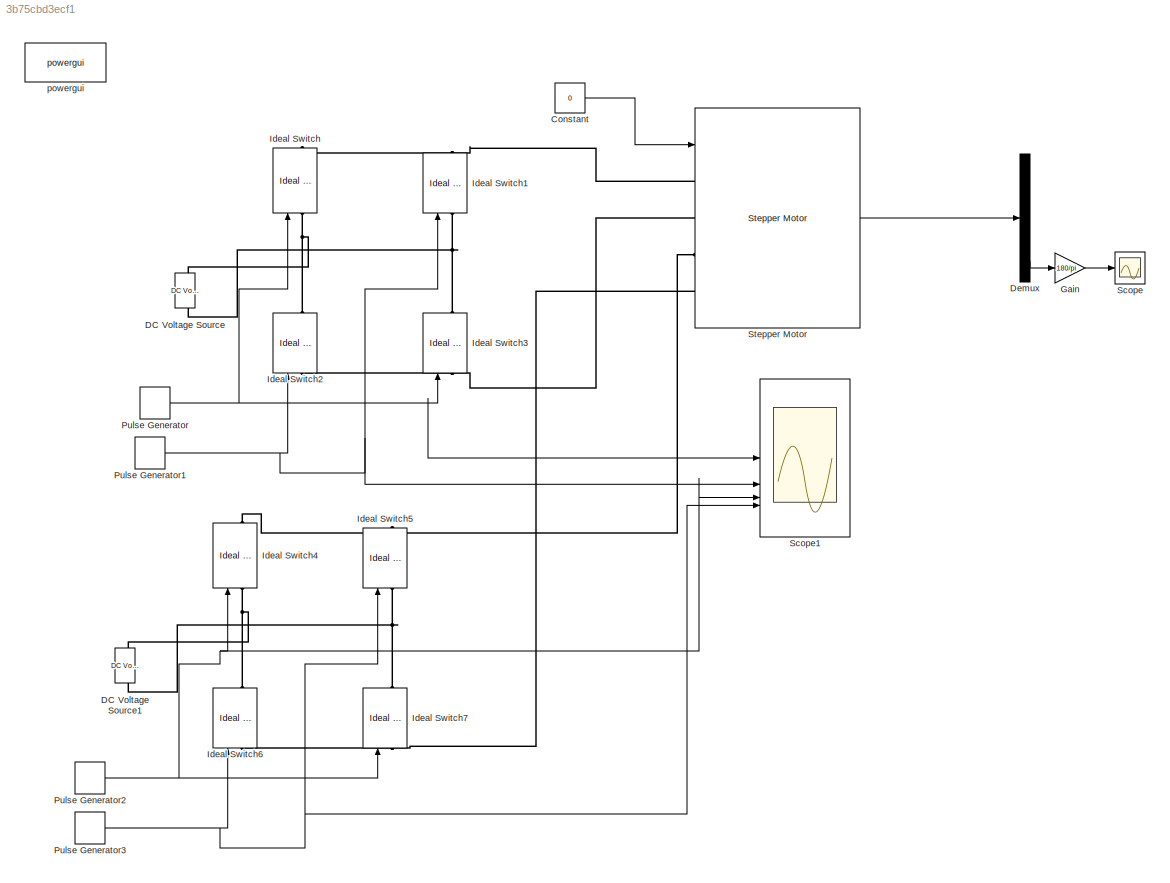
MODEL slx_3b75cbd3ecf1
KIND model
CONFIG AbsTol = auto
CONFIG EnableMultiTasking = off
CONFIG FixedStep = auto
CONFIG MaxStep = auto
CONFIG MinStep = auto
CONFIG RelTol = 1e-3
CONFIG SampleTimeConstraint = Unconstrained
CONFIG SolverName = VariableStepAuto
CONFIG StartTime = 0.0
CONFIG StopTime = 10.0
BLOCK [Constant] Constant
  Value = 0
BLOCK [Reference] DC Voltage Source  REF=spsDCVoltageSourceLib/DC Voltage Source
  LibrarySourceBlock = sps_lib/Sources/DC Voltage Source
  SourceBlock = spsDCVoltageSourceLib/DC Voltage Source
  SourceType = DC Voltage Source
BLOCK [Reference] DC Voltage Source1  REF=spsDCVoltageSourceLib/DC Voltage Source
  LibrarySourceBlock = sps_lib/Sources/DC Voltage Source
  SourceBlock = spsDCVoltageSourceLib/DC Voltage Source
  SourceType = DC Voltage Source
BLOCK [Demux] Demux
  Outputs = 5
BLOCK [Gain] Gain
  Gain = 180/pi
BLOCK [Reference] Ideal Switch  REF=spsIdealSwitchLib/Ideal Switch
  LibrarySourceBlock = sps_lib/Power Electronics/Ideal Switch
  NameLocation = right
  SourceBlock = spsIdealSwitchLib/Ideal Switch
  SourceType = Ideal Switch
BLOCK [Reference] Ideal Switch1  REF=spsIdealSwitchLib/Ideal Switch
  LibrarySourceBlock = sps_lib/Power Electronics/Ideal Switch
  NameLocation = right
  SourceBlock = spsIdealSwitchLib/Ideal Switch
  SourceType = Ideal Switch
BLOCK [Reference] Ideal Switch2  REF=spsIdealSwitchLib/Ideal Switch
  LibrarySourceBlock = sps_lib/Power Electronics/Ideal Switch
  NameLocation = right
  SourceBlock = spsIdealSwitchLib/Ideal Switch
  SourceType = Ideal Switch
BLOCK [Reference] Ideal Switch3  REF=spsIdealSwitchLib/Ideal Switch
  LibrarySourceBlock = sps_lib/Power Electronics/Ideal Switch
  NameLocation = right
  SourceBlock = spsIdealSwitchLib/Ideal Switch
  SourceType = Ideal Switch
BLOCK [Reference] Ideal Switch4  REF=spsIdealSwitchLib/Ideal Switch
  LibrarySourceBlock = sps_lib/Power Electronics/Ideal Switch
  NameLocation = right
  SourceBlock = spsIdealSwitchLib/Ideal Switch
  SourceType = Ideal Switch
BLOCK [Reference] Ideal Switch5  REF=spsIdealSwitchLib/Ideal Switch
  LibrarySourceBlock = sps_lib/Power Electronics/Ideal Switch
  NameLocation = right
  SourceBlock = spsIdealSwitchLib/Ideal Switch
  SourceType = Ideal Switch
BLOCK [Reference] Ideal Switch6  REF=spsIdealSwitchLib/Ideal Switch
  LibrarySourceBlock = sps_lib/Power Electronics/Ideal Switch
  NameLocation = right
  SourceBlock = spsIdealSwitchLib/Ideal Switch
  SourceType = Ideal Switch
BLOCK [Reference] Ideal Switch7  REF=spsIdealSwitchLib/Ideal Switch
  LibrarySourceBlock = sps_lib/Power Electronics/Ideal Switch
  NameLocation = right
  SourceBlock = spsIdealSwitchLib/Ideal Switch
  SourceType = Ideal Switch
BLOCK [DiscretePulseGenerator] Pulse Generator
  Period = 8
  PhaseDelay = -1
  PulseType = Time based
  PulseWidth = 37.5
BLOCK [DiscretePulseGenerator] Pulse Generator1
  Period = 8
  PhaseDelay = 3
  PulseType = Time based
  PulseWidth = 37.5
BLOCK [DiscretePulseGenerator] Pulse Generator2
  Period = 8
  PhaseDelay = 1
  PulseType = Time based
  PulseWidth = 37.5
BLOCK [DiscretePulseGenerator] Pulse Generator3
  Period = 8
  PhaseDelay = 5
  PulseType = Time based
  PulseWidth = 37.5
BLOCK [Scope] Scope
  Floating = off
  NumInputPorts = 1
  ScopeSpecificationString = Simulink.scopes.TimeScopeBlockCfg('CurrentConfiguration', extmgr.ConfigurationSet(extmgr.Configuration('Core','General UI',true),extmgr.Configuration('Core','Source UI',true),extmgr.Configuration('Sources','WiredSimulink',true),extmgr.Configuration('Visuals','Time Domain',true,'SerializedDisplays',{struct('MinYLimReal','-35.86047','MaxYLimReal','322.74425','YLabelReal','','MinYLimMag','0.00000','M...<+1380ch>
BLOCK [Scope] Scope1
  Floating = off
  NumInputPorts = 4
  ScopeSpecificationString = Simulink.scopes.TimeScopeBlockCfg('CurrentConfiguration', extmgr.ConfigurationSet(extmgr.Configuration('Core','General UI',true),extmgr.Configuration('Core','Source UI',true),extmgr.Configuration('Sources','WiredSimulink',true,'DataLoggingVariableName','ScopeData1'),extmgr.Configuration('Visuals','Time Domain',true,'SerializedDisplays',{struct('MinYLimReal','-0.125','MaxYLimReal','1.125','YLabelRe...<+3388ch>
BLOCK [Reference] Stepper Motor  REF=spsStepperMotorLib/Stepper Motor
  LibrarySourceBlock = sps_lib/Electrical Machines/Stepper Motor
  SourceBlock = spsStepperMotorLib/Stepper Motor
  SourceType = Stepper Motor
BLOCK [Reference] powergui  REF=sps_lib/powergui
  Priority = 1
  SourceBlock = sps_lib/powergui
  SourceType = PSB option menu block
LINE Constant:1 -> Stepper Motor:1
LINE Demux:5 -> Gain:1
LINE Gain:1 -> Scope:1
NET Pulse Generator1:1 -> Ideal Switch1:1, Ideal Switch2:1, Scope1:2
NET Pulse Generator2:1 -> Ideal Switch4:1, Ideal Switch7:1, Scope1:3
NET Pulse Generator3:1 -> Ideal Switch5:1, Ideal Switch6:1, Scope1:4
NET Pulse Generator:1 -> Ideal Switch3:1, Ideal Switch:1, Scope1:1
LINE Stepper Motor:1 -> Demux:1
PNET net1: DC Voltage Source1:LConn1 -- Ideal Switch5:LConn1 -- Ideal Switch7:RConn1
PNET net2: DC Voltage Source1:RConn1 -- Ideal Switch4:LConn1 -- Ideal Switch6:RConn1
PNET net3: DC Voltage Source:LConn1 -- Ideal Switch1:LConn1 -- Ideal Switch3:RConn1
PNET net4: DC Voltage Source:RConn1 -- Ideal Switch2:RConn1 -- Ideal Switch:LConn1
PNET net5: Ideal Switch1:RConn1 -- Ideal Switch:RConn1 -- Stepper Motor:LConn1
PNET net6: Ideal Switch2:LConn1 -- Ideal Switch3:LConn1 -- Stepper Motor:LConn2
PNET net7: Ideal Switch4:RConn1 -- Ideal Switch5:RConn1 -- Stepper Motor:LConn3
PNET net8: Ideal Switch6:LConn1 -- Ideal Switch7:LConn1 -- Stepper Motor:LConn4
note: NET lines group one-source signal fan-out (src -> all destinations, sorted); 1:1 wires keep LINE; PNET lines group multi-terminal physical nets as a canonical sorted terminal list (undirected conserving connections); 2-terminal nets keep the pairwise PLINE form
